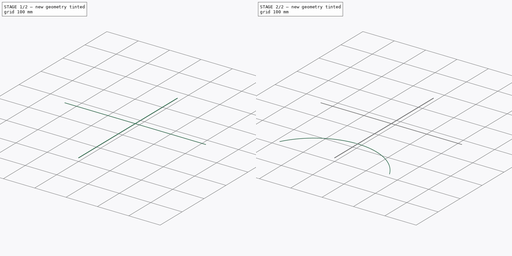
[diagram: build sequence overview — one tinted view per stage of 2, left to right]
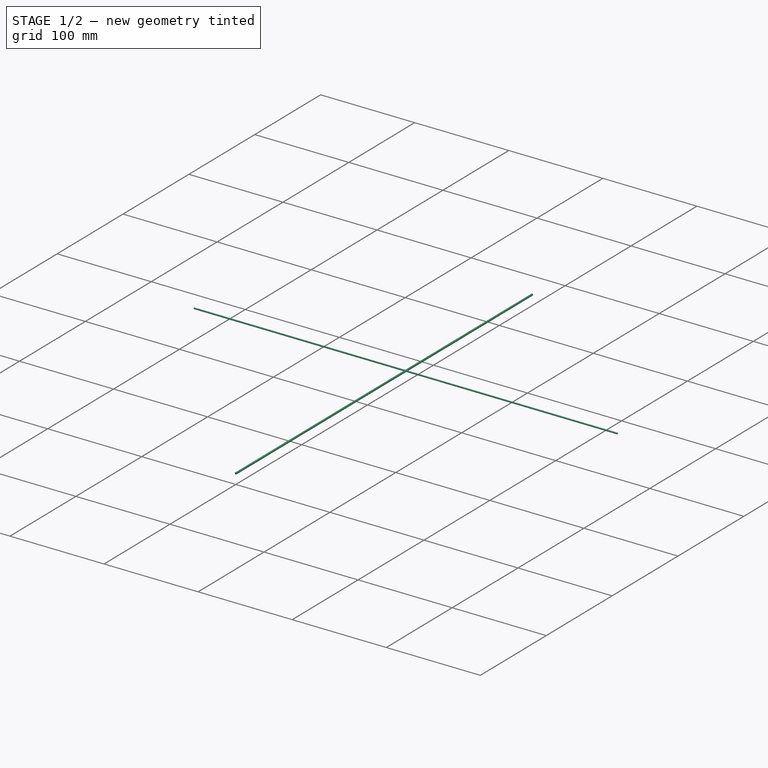
[diagram: stage 1 of 2 — iso view after this stage's code; geometry added in this stage tinted green]
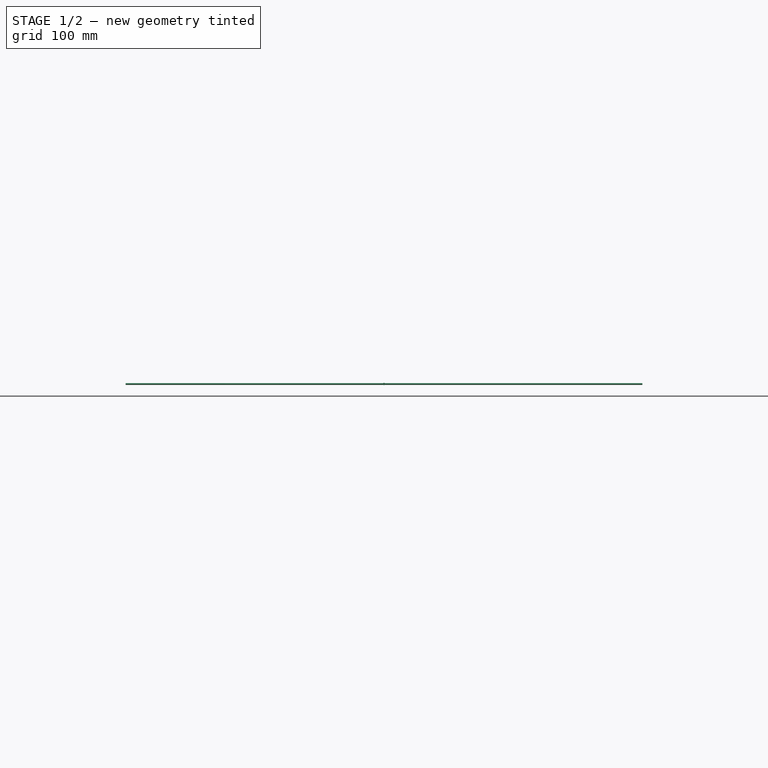
[diagram: stage 1 of 2 — front view after this stage's code; geometry added in this stage tinted green]
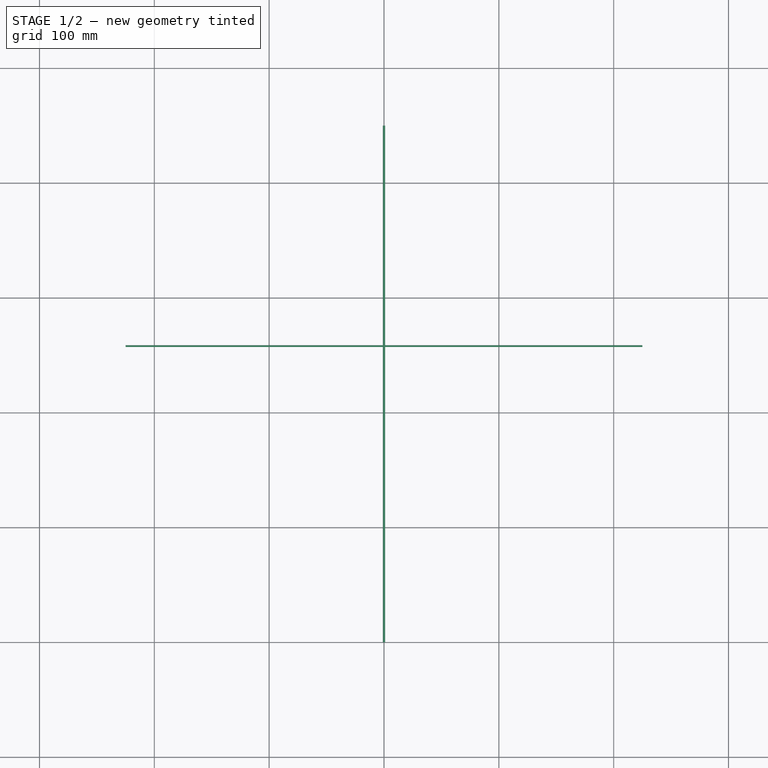
[diagram: stage 1 of 2 — top view after this stage's code; geometry added in this stage tinted green]
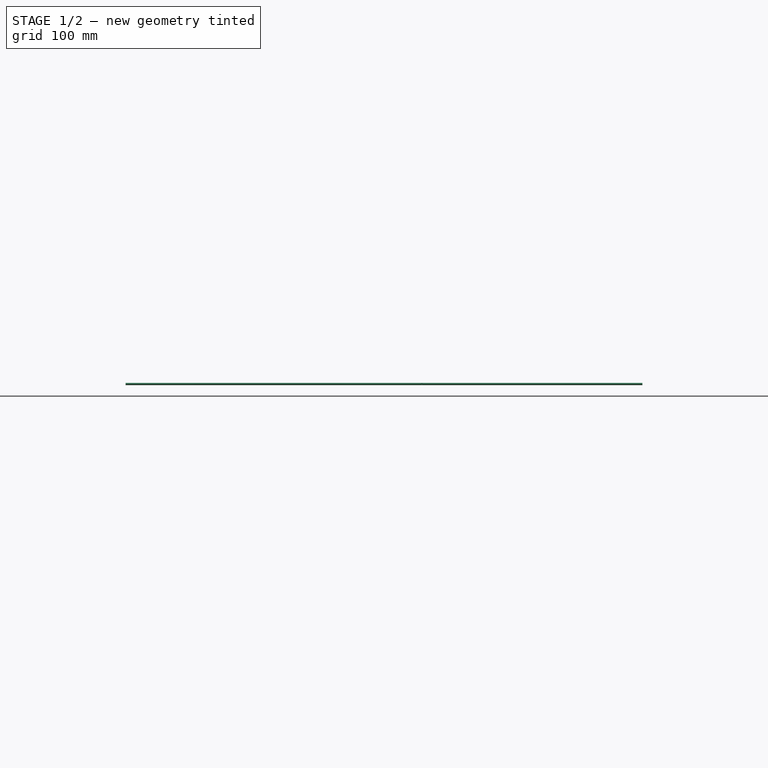
[diagram: stage 1 of 2 — right view after this stage's code; geometry added in this stage tinted green]
FCSTD DOCUMENT  (FreeCAD 0.20R27422 (Git))
Label: bruhzilian
License: All rights reserved
LicenseURL: http://en.wikipedia.org/wiki/All_rights_reserved
objects: Sketcher::SketchObject×6, PartDesign::Pad×2, PartDesign::AdditivePipe×1, Surface::GeomFillSurface×1, PartDesign::Body×1
note: 14 computed .brp shape members not serialized (recipe doc carries the construction recipe); baked Part::Feature solids carry a one-line shape summary decoded from their .brp

FEATURE [Sketcher::SketchObject] Sketch
  FullyConstrained = true
  MapMode = 5
  Placement = pos=(0,0,0) rot=(1,0,0;1.5708rad)
  Support = -> [XZ_Plane]
  sketch-geometry (1):
    g0: Circle CenterX=0 CenterY=0 CenterZ=0 NormalX=0 NormalY=0 NormalZ=1 AngleXU=0 Radius=1
  constraints (3):
    c: PointOnObject(g0,g-2)
    c: Radius(g0) = 1
    c: PointOnObject(g0,g-1)
FEATURE [Sketcher::SketchObject] Sketch001
  FullyConstrained = true
  MapMode = 5
  Placement = pos=(0,0,0) rot=(0.57735,0.57735,0.57735;2.0944rad)
  Support = -> [YZ_Plane]
  sketch-geometry (1):
    g0: Circle CenterX=258 CenterY=0 CenterZ=0 NormalX=0 NormalY=0 NormalZ=1 AngleXU=0 Radius=0.75
  constraints (3):
    c: PointOnObject(g0,g-1)
    c: Radius(g0) = 0.75
    c: DistanceX(g-1,g0) = 258
FEATURE [Sketcher::SketchObject] Sketch002
  FullyConstrained = true
  MapMode = 5
  Placement = pos=(0,0,0) rot=(0.57735,0.57735,0.57735;2.0944rad)
  Support = -> [YZ_Plane]
  sketch-geometry (1):
    g0: Circle CenterX=105 CenterY=0 CenterZ=0 NormalX=0 NormalY=0 NormalZ=1 AngleXU=0 Radius=0.75
  constraints (3):
    c: PointOnObject(g0,g-1)
    c: Radius(g0) = 0.75
    c: DistanceX(g-1,g0) = 105
FEATURE [PartDesign::Pad] Pad
  Direction = (0,-1,-2e-16)
  Length = 450
  Length2 = 10
  Placement = pos=(0,0,0) rot=(1,0,0;1.5708rad)
  Profile = -> Sketch
  ReferenceAxis = -> Sketch [N_Axis]
  Reversed = true
  Type = 0
FEATURE [PartDesign::Pad] Pad001
  BaseFeature = -> Pad
  Direction = (1,-2e-16,3e-16)
  Length = 450
  Length2 = 10
  Midplane = true
  Placement = pos=(0,0,0) rot=(1,0,0;1.5708rad)
  Profile = -> Sketch001
  ReferenceAxis = -> Sketch001 [N_Axis]
  Type = 0
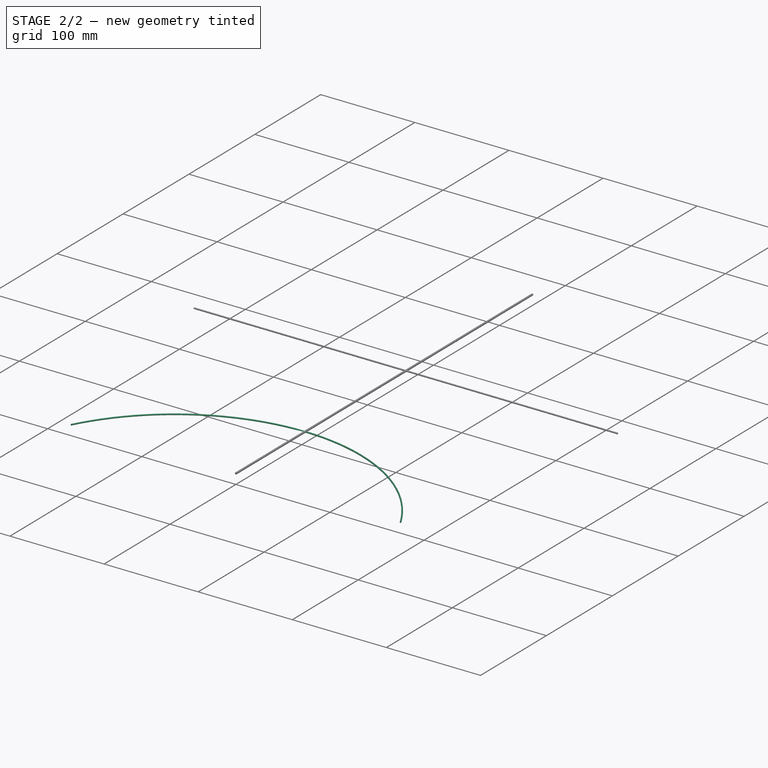
[diagram: stage 2 of 2 — iso view after this stage's code; geometry added in this stage tinted green]
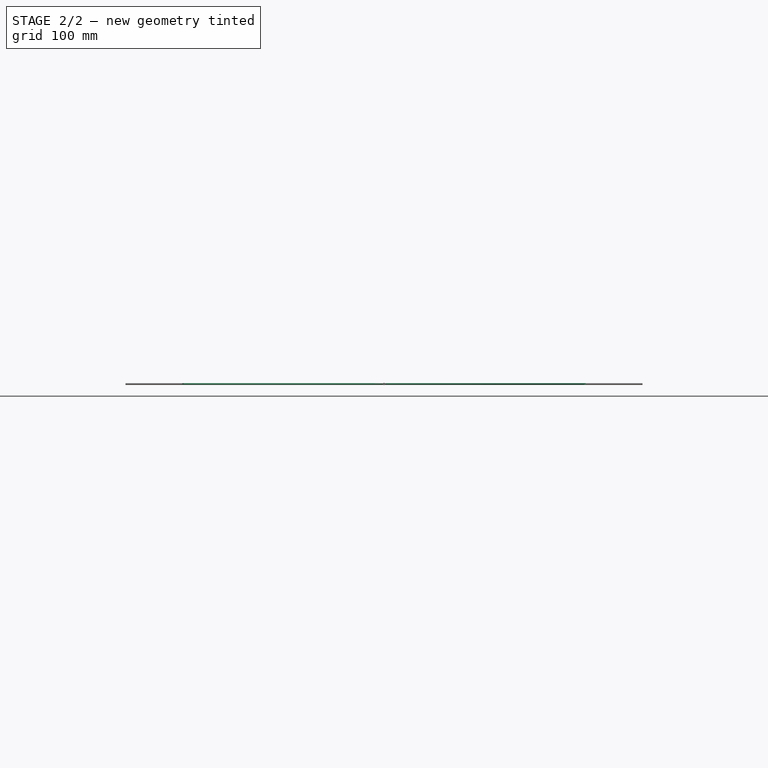
[diagram: stage 2 of 2 — front view after this stage's code; geometry added in this stage tinted green]
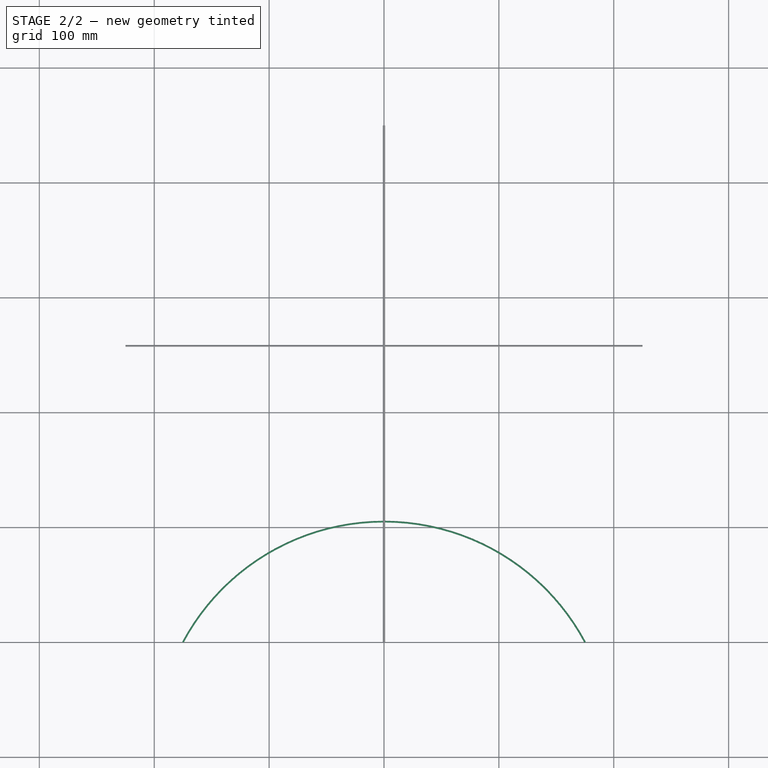
[diagram: stage 2 of 2 — top view after this stage's code; geometry added in this stage tinted green]
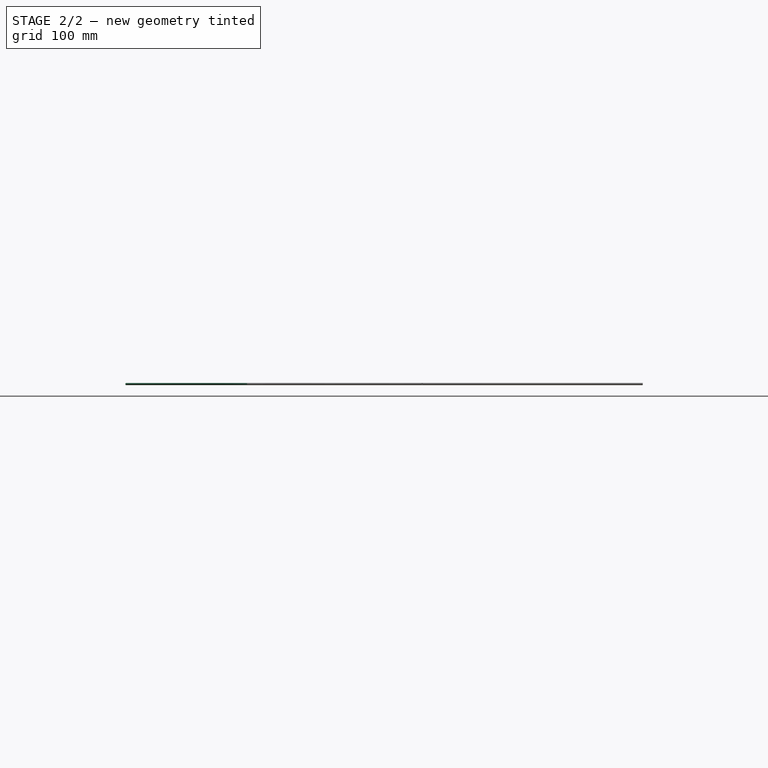
[diagram: stage 2 of 2 — right view after this stage's code; geometry added in this stage tinted green]
FEATURE [Sketcher::SketchObject] Sketch003
  FullyConstrained = true
  MapMode = 5
  Support = -> [XY_Plane]
  sketch-geometry (2):
    g0: ArcOfCircle CenterX=-1.2e-14 CenterY=-93.3333 CenterZ=0 NormalX=0 NormalY=0 NormalZ=1 AngleXU=0 Radius=198.333 StartAngle=1.5708 EndAngle=2.65164
    g1: ArcOfCircle CenterX=-1.2e-14 CenterY=-93.3333 CenterZ=0 NormalX=0 NormalY=0 NormalZ=1 AngleXU=0 Radius=198.333 StartAngle=0.489957 EndAngle=1.5708
  constraints (8):
    c: PointOnObject(g0,g-1)
    c: PointOnObject(g1,g-1)
    c: Tangent(g1,g0) = -1.5708
    c: PointOnObject(g0,g-2)
    c: DistanceX(g0,g-1) = 175
    c: DistanceX(g-1,g1) = 175
    c: DistanceY(g-1,g0) = 105
    c: Equal(g1,g0)
FEATURE [PartDesign::AdditivePipe] AdditivePipe
  AuxilleryCurvelinear = true
  AuxillerySpineTangent = false
  BaseFeature = -> Pad001
  Binormal = (0,0,0)
  Mode = 0
  Placement = pos=(0,0,0) rot=(1,0,0;1.5708rad)
  Profile = -> Sketch002
  Spine = -> Sketch003 [Edge2,Edge1]
  SpineTangent = false
  Transformation = 0
  Transition = 0
FEATURE [Sketcher::SketchObject] Sketch004
  FullyConstrained = true
  Placement = pos=(0,0,1.25) rot=(0,0,1;0rad)
  sketch-geometry (4):
    g0: LineSegment StartX=-225 StartY=258 StartZ=0 EndX=225 EndY=258 EndZ=0
    g1: LineSegment StartX=225 StartY=258 StartZ=0 EndX=175 EndY=0 EndZ=0
    g2: LineSegment StartX=175 StartY=0 StartZ=0 EndX=-175 EndY=0 EndZ=0
    g3: LineSegment StartX=-175 StartY=0 StartZ=0 EndX=-225 EndY=258 EndZ=0
  constraints (12):
    c: Horizontal(g0)
    c: Coincident(g1,g0)
    c: PointOnObject(g1,g-1)
    c: Coincident(g2,g1)
    c: Coincident(g3,g2)
    c: Coincident(g3,g0)
    c: PointOnObject(g2,g-1)
    c: Equal(g1,g3)
    c: DistanceX(g2,g-1) = 175
    c: DistanceX(g-1,g1) = 175
    c: DistanceX(g0,g0) = 450
    c: DistanceY(g1,g0) = 258
FEATURE [Surface::GeomFillSurface] Surface
  BoundaryList = -> [Sketch004]
  FillType = 0
FEATURE [Sketcher::SketchObject] Sketch005
  FullyConstrained = true
  MapMode = 5
  Support = -> [XY_Plane]
  sketch-geometry (2):
    g0: LineSegment StartX=-225 StartY=258 StartZ=0 EndX=0 EndY=450 EndZ=0
    g1: LineSegment StartX=0 StartY=450 StartZ=0 EndX=225 EndY=258 EndZ=0
  constraints (7):
    c: Coincident(g1,g0)
    c: DistanceY(g-1,g0) = 258
    c: DistanceX(g0,g-1) = 225
    c: DistanceX(g0,g1) = 225
    c: DistanceY(g-1,g1) = 258
    c: PointOnObject(g0,g-2)
    c: DistanceY(g-1,g0) = 450
FEATURE [PartDesign::Body] Body
  Group = -> [Sketch,Sketch001,Pad,Pad001,Sketch003,Sketch002,AdditivePipe,Sketch005]
  Origin = -> Origin
  Tip = -> AdditivePipe
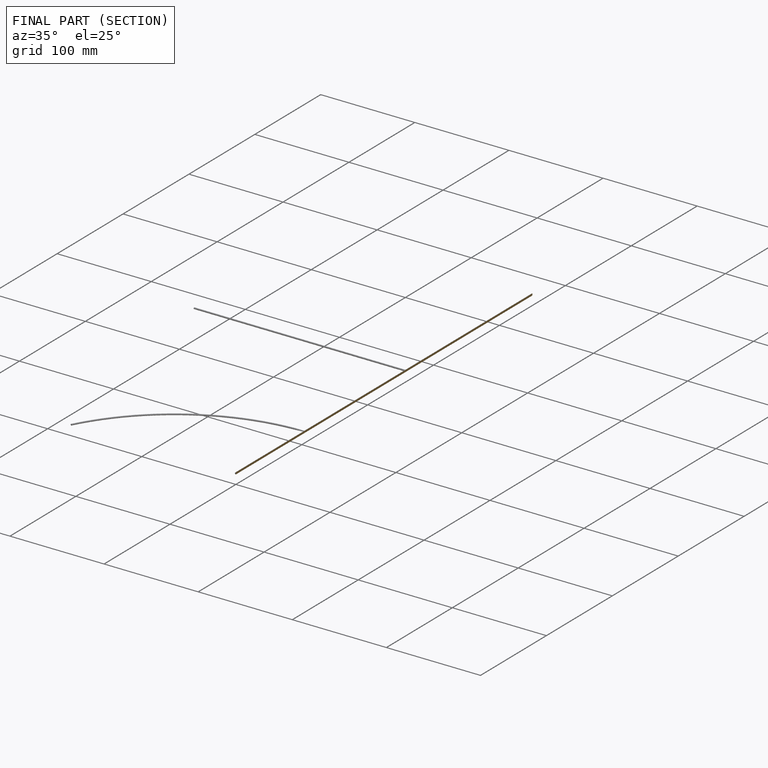
[diagram: finished part — half-section view (interior)]
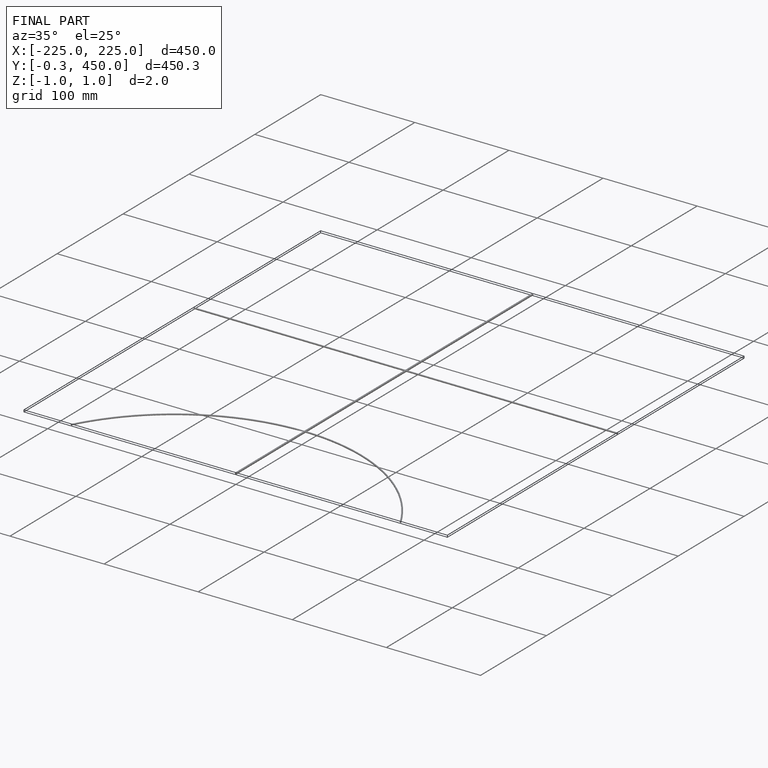
[diagram: finished part — iso view with bounding-box wireframe]
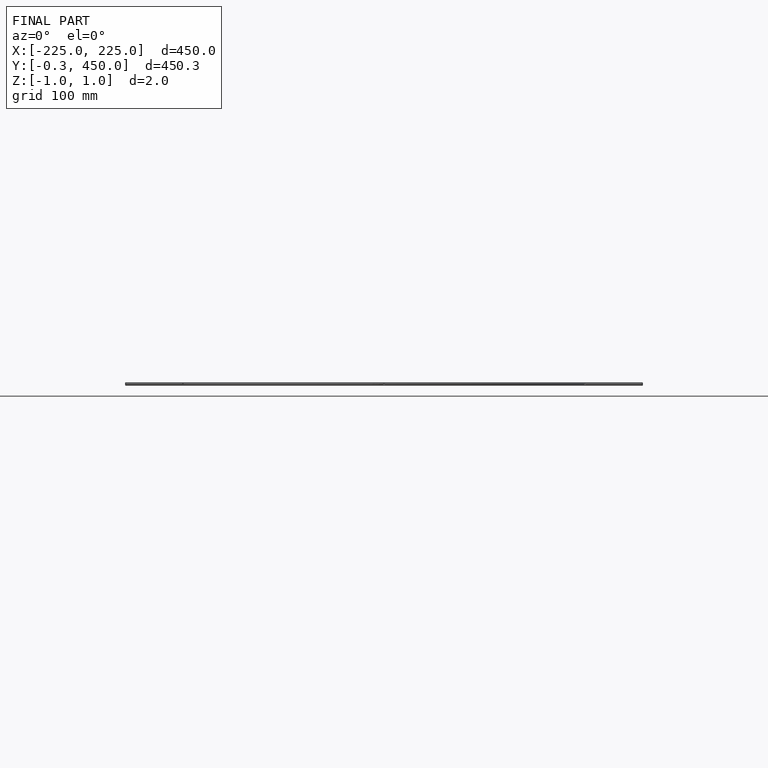
[diagram: finished part — front view with bounding-box wireframe]
